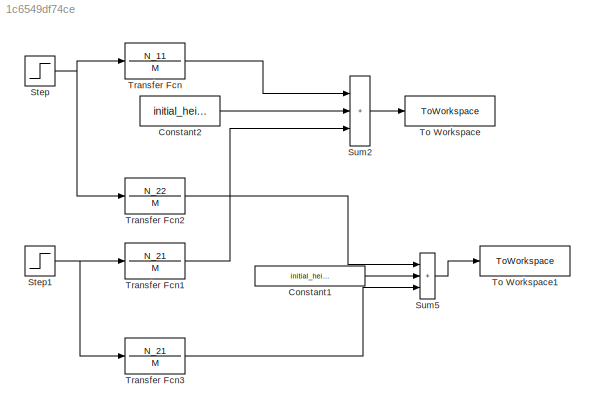
MODEL slx_1c6549df74ce
KIND model
CONFIG AbsTol = auto
CONFIG EnableMultiTasking = off
CONFIG FixedStep = auto
CONFIG MaxStep = auto
CONFIG MinStep = auto
CONFIG RelTol = 1e-3
CONFIG SampleTimeConstraint = Unconstrained
CONFIG SolverName = VariableStepAuto
CONFIG StartTime = 0.0
CONFIG StopTime = 10.0
BLOCK [Constant] Constant1
  Value = initial_height_2
BLOCK [Constant] Constant2
  Value = initial_height_1
BLOCK [Step] Step
  After = flow_input_step_1
  SampleTime = 0
  Time = T0
BLOCK [Step] Step1
  After = flow_input_step_2
  SampleTime = 0
  Time = T0
BLOCK [Sum] Sum2
  IconShape = rectangular
  Inputs = +++
BLOCK [Sum] Sum5
  IconShape = rectangular
  Inputs = +++
BLOCK [ToWorkspace] To Workspace
  FixptAsFi = on
  MaxDataPoints = inf
  SampleTime = -1
  VariableName = h1
BLOCK [ToWorkspace] To Workspace1
  FixptAsFi = on
  MaxDataPoints = inf
  SampleTime = -1
  VariableName = h2
BLOCK [TransferFcn] Transfer Fcn
  Denominator = M
  Numerator = N_11
BLOCK [TransferFcn] Transfer Fcn1
  Denominator = M
  Numerator = N_21
BLOCK [TransferFcn] Transfer Fcn2
  Denominator = M
  Numerator = N_22
BLOCK [TransferFcn] Transfer Fcn3
  Denominator = M
  Numerator = N_21
LINE Constant1:1 -> Sum5:2
LINE Constant2:1 -> Sum2:2
NET Step1:1 -> Transfer Fcn1:1, Transfer Fcn3:1
NET Step:1 -> Transfer Fcn2:1, Transfer Fcn:1
LINE Sum2:1 -> To Workspace:1
LINE Sum5:1 -> To Workspace1:1
LINE Transfer Fcn1:1 -> Sum2:3
LINE Transfer Fcn2:1 -> Sum5:1
LINE Transfer Fcn3:1 -> Sum5:3
LINE Transfer Fcn:1 -> Sum2:1
note: NET lines group one-source signal fan-out (src -> all destinations, sorted); 1:1 wires keep LINE
